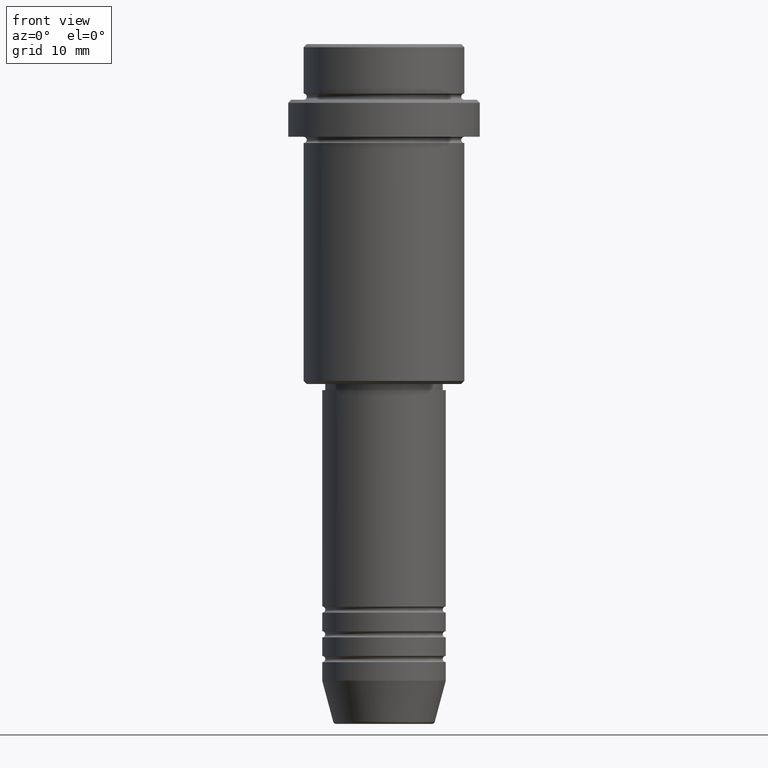
[diagram: clean part render]
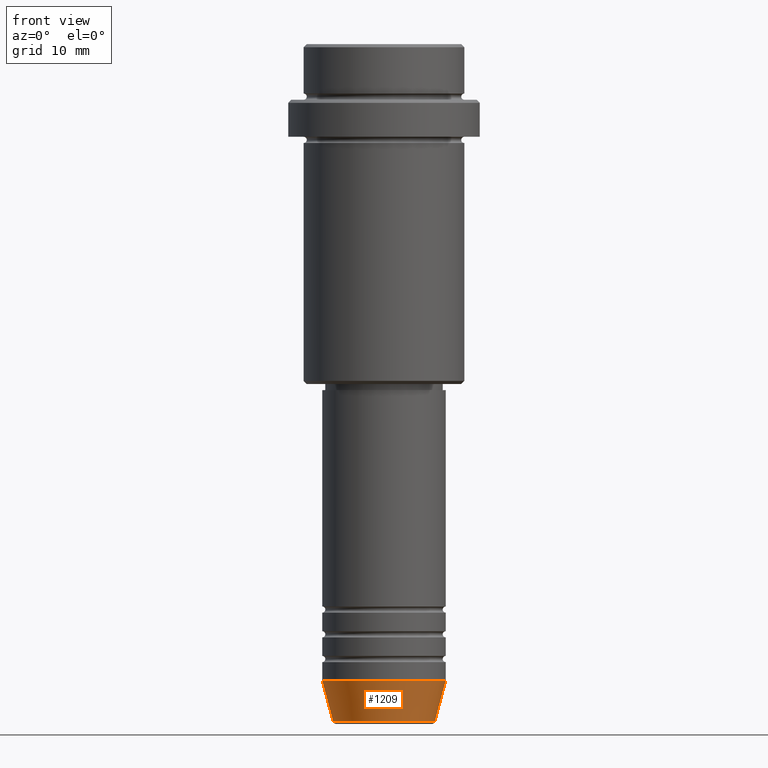
[diagram: same view with one face highlighted and labeled with its STEP entity id]
A machine part, front view. The second image highlights one B-rep face of the part: STEP entity #1209.
In plain terms, the highlighted conical surface has half-angle 15 deg.
Its self-contained STEP definition (entity closure, byte-faithful):
#5 = ORIENTED_EDGE ( 'NONE', *, *, #120, .F. ) ;
#83 = EDGE_CURVE ( 'NONE', #1363, #369, #739, .T. ) ;
#120 = EDGE_CURVE ( 'NONE', #1151, #396, #533, .T. ) ;
#121 = CONICAL_SURFACE ( 'NONE', #911, 10.00000000000000000, 0.2617993877991500740 ) ;
#122 = AXIS2_PLACEMENT_3D ( 'NONE', #906, #788, #784 ) ;
#124 = CIRCLE ( 'NONE', #1140, 10.00000000000000000 ) ;
#146 = EDGE_CURVE ( 'NONE', #1151, #1363, #1018, .T. ) ;
#263 = FACE_OUTER_BOUND ( 'NONE', #815, .T. ) ;
#369 = VERTEX_POINT ( 'NONE', #1255 ) ;
#396 = VERTEX_POINT ( 'NONE', #1182 ) ;
#487 = ORIENTED_EDGE ( 'NONE', *, *, #83, .T. ) ;
#513 = DIRECTION ( 'NONE',  ( -0.000000000000000000, -0.000000000000000000, 1.000000000000000000 ) ) ;
#533 = LINE ( 'NONE', #630, #776 ) ;
#577 = CARTESIAN_POINT ( 'NONE',  ( 0.000000000000000000, 0.000000000000000000, -103.0000000000000142 ) ) ;
#627 = CARTESIAN_POINT ( 'NONE',  ( 8.223655072137191269, 0.000000000000000000, -109.6294095225512564 ) ) ;
#628 = CARTESIAN_POINT ( 'NONE',  ( 0.000000000000000000, 0.000000000000000000, -103.0000000000000142 ) ) ;
#630 = CARTESIAN_POINT ( 'NONE',  ( -10.00000000000000000, 1.224646799147353256E-15, -103.0000000000000142 ) ) ;
#649 = ORIENTED_EDGE ( 'NONE', *, *, #146, .T. ) ;
#710 = DIRECTION ( 'NONE',  ( -0.000000000000000000, -0.000000000000000000, 1.000000000000000000 ) ) ;
#739 = LINE ( 'NONE', #986, #1356 ) ;
#776 = VECTOR ( 'NONE', #1198, 1000.000000000000000 ) ;
#784 = DIRECTION ( 'NONE',  ( 1.000000000000000000, 0.000000000000000000, 0.000000000000000000 ) ) ;
#788 = DIRECTION ( 'NONE',  ( -0.000000000000000000, -0.000000000000000000, 1.000000000000000000 ) ) ;
#815 = EDGE_LOOP ( 'NONE', ( #5, #649, #487, #1399 ) ) ;
#840 = DIRECTION ( 'NONE',  ( 1.000000000000000000, 0.000000000000000000, 0.000000000000000000 ) ) ;
#841 = EDGE_CURVE ( 'NONE', #396, #369, #124, .T. ) ;
#906 = CARTESIAN_POINT ( 'NONE',  ( 0.000000000000000000, 0.000000000000000000, -109.6294095225512564 ) ) ;
#911 = AXIS2_PLACEMENT_3D ( 'NONE', #577, #710, #1354 ) ;
#986 = CARTESIAN_POINT ( 'NONE',  ( 10.00000000000000000, 0.000000000000000000, -103.0000000000000142 ) ) ;
#1018 = CIRCLE ( 'NONE', #122, 8.223655072137191269 ) ;
#1140 = AXIS2_PLACEMENT_3D ( 'NONE', #628, #513, #840 ) ;
#1151 = VERTEX_POINT ( 'NONE', #1242 ) ;
#1182 = CARTESIAN_POINT ( 'NONE',  ( -10.00000000000000000, 1.224646799147353256E-15, -103.0000000000000142 ) ) ;
#1194 = DIRECTION ( 'NONE',  ( 0.2588190451025213501, 0.000000000000000000, 0.9659258262890680902 ) ) ;
#1198 = DIRECTION ( 'NONE',  ( -0.2588190451025213501, 3.169619151431772337E-17, 0.9659258262890680902 ) ) ;
#1209 = ADVANCED_FACE ( 'NONE', ( #263 ), #121, .T. ) ;
#1242 = CARTESIAN_POINT ( 'NONE',  ( -8.223655072137191269, 1.115877042642912054E-15, -109.6294095225512564 ) ) ;
#1255 = CARTESIAN_POINT ( 'NONE',  ( 10.00000000000000000, 0.000000000000000000, -103.0000000000000142 ) ) ;
#1354 = DIRECTION ( 'NONE',  ( 1.000000000000000000, 0.000000000000000000, 0.000000000000000000 ) ) ;
#1356 = VECTOR ( 'NONE', #1194, 1000.000000000000000 ) ;
#1363 = VERTEX_POINT ( 'NONE', #627 ) ;
#1399 = ORIENTED_EDGE ( 'NONE', *, *, #841, .F. ) ;